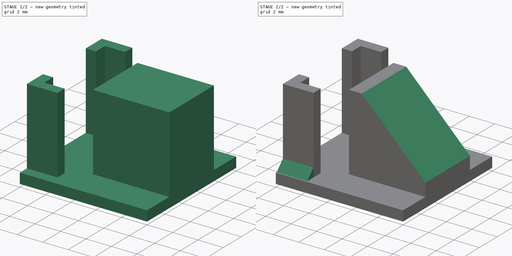
[diagram: build sequence overview — one tinted view per stage of 2, left to right]
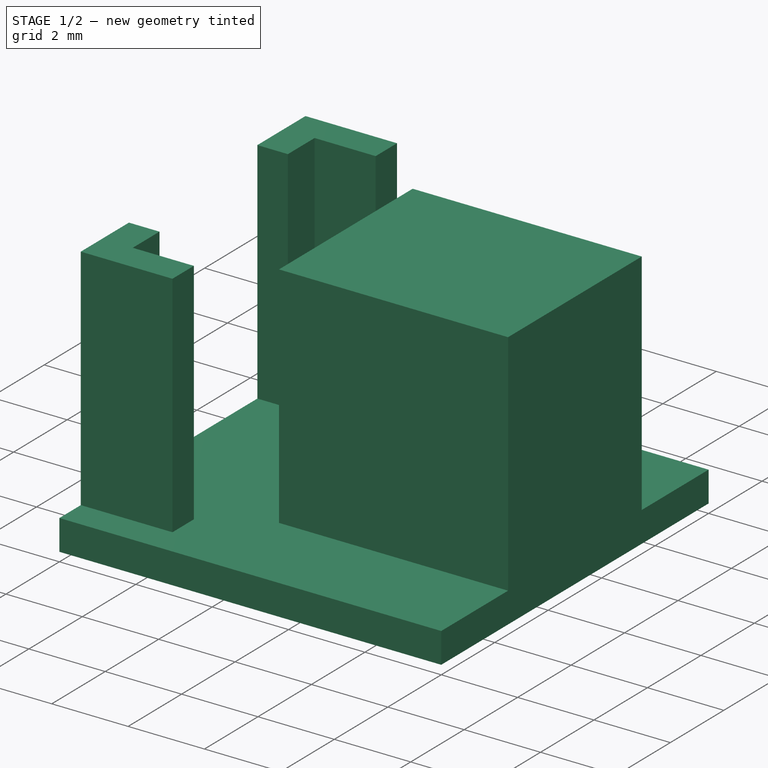
[diagram: stage 1 of 2 — iso view after this stage's code; geometry added in this stage tinted green]
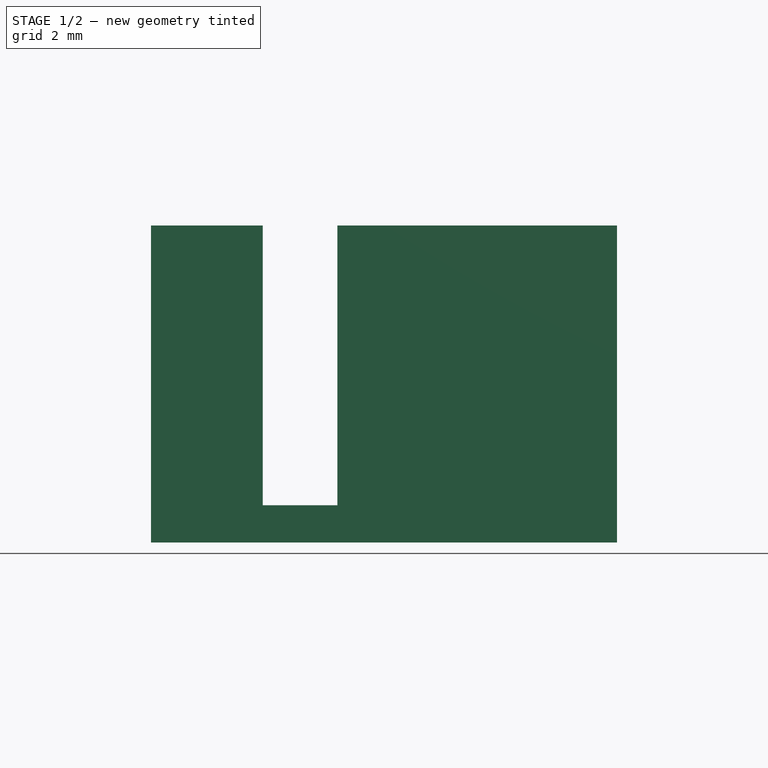
[diagram: stage 1 of 2 — front view after this stage's code; geometry added in this stage tinted green]
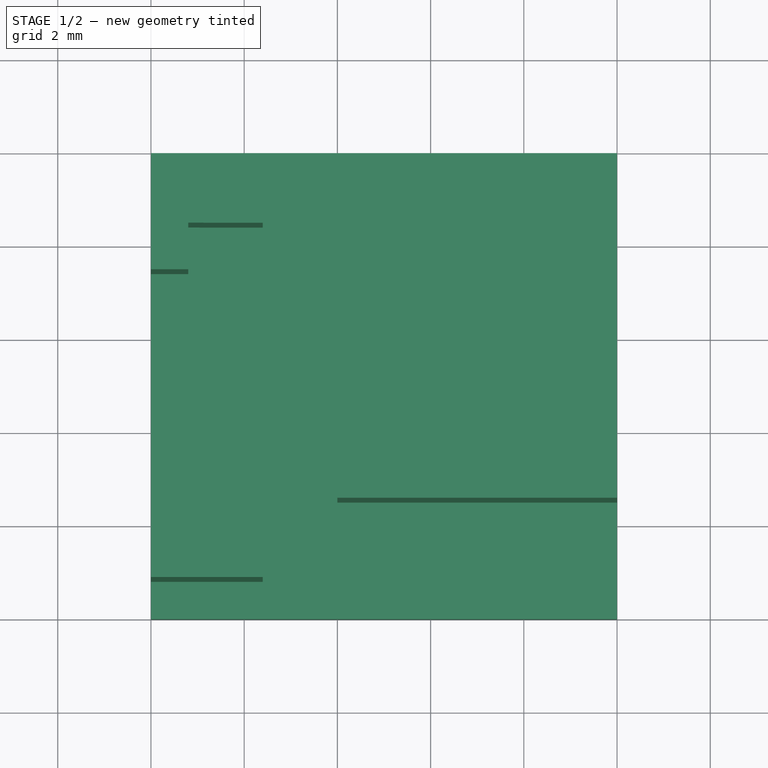
[diagram: stage 1 of 2 — top view after this stage's code; geometry added in this stage tinted green]
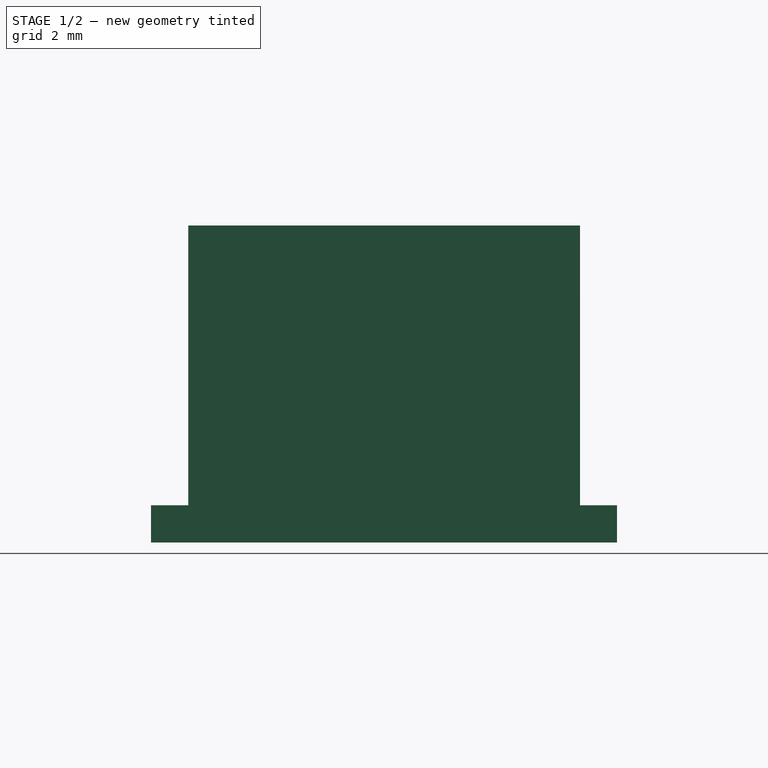
[diagram: stage 1 of 2 — right view after this stage's code; geometry added in this stage tinted green]
FCSTD DOCUMENT  (FreeCAD 0.20R)
Label: btn_holder
License: All rights reserved
LicenseURL: http://en.wikipedia.org/wiki/All_rights_reserved
objects: Sketcher::SketchObject×2, PartDesign::Pad×2, PartDesign::Chamfer×2, PartDesign::Body×1
note: 11 computed .brp shape members not serialized (recipe doc carries the construction recipe); baked Part::Feature solids carry a one-line shape summary decoded from their .brp

FEATURE [Sketcher::SketchObject] Sketch
  FullyConstrained = true
  MapMode = 5
  Support = -> [XY_Plane]
  sketch-geometry (4):
    g0: LineSegment StartX=0 StartY=0 StartZ=0 EndX=10 EndY=0 EndZ=0
    g1: LineSegment StartX=10 StartY=0 StartZ=0 EndX=10 EndY=10 EndZ=0
    g2: LineSegment StartX=10 StartY=10 StartZ=0 EndX=0 EndY=10 EndZ=0
    g3: LineSegment StartX=0 StartY=10 StartZ=0 EndX=0 EndY=0 EndZ=0
  constraints (11):
    c: Coincident(g0,g1)
    c: Coincident(g1,g2)
    c: Coincident(g2,g3)
    c: Coincident(g3,g0)
    c: Horizontal(g0)
    c: Horizontal(g2)
    c: Vertical(g1)
    c: Vertical(g3)
    c: Coincident(g0,g-1)
    c: Distance(g2) = 10
    c: Distance(g1) = 10
FEATURE [PartDesign::Pad] Pad
  Direction = (0,0,1)
  Length = 0.8
  Length2 = 10
  Profile = -> Sketch
  ReferenceAxis = -> Sketch [N_Axis]
  Type = 0
FEATURE [Sketcher::SketchObject] Sketch001
  FullyConstrained = false
  MapMode = 5
  Placement = pos=(0,0,0.8) rot=(0,0,1;0rad)
  Support = -> [Pad]
  sketch-geometry (16):
    g0: LineSegment StartX=4 StartY=7.5 StartZ=0 EndX=10 EndY=7.5 EndZ=0
    g1: LineSegment StartX=10 StartY=7.5 StartZ=0 EndX=10 EndY=2.5 EndZ=0
    g2: LineSegment StartX=10 StartY=2.5 StartZ=0 EndX=4 EndY=2.5 EndZ=0
    g3: LineSegment StartX=4 StartY=2.5 StartZ=0 EndX=4 EndY=7.5 EndZ=0
    g4: LineSegment StartX=0 StartY=0.8 StartZ=0 EndX=0 EndY=2.6 EndZ=0
    g5: LineSegment StartX=0 StartY=2.6 StartZ=0 EndX=0.8 EndY=2.6 EndZ=0
    g6: LineSegment StartX=0 StartY=0.8 StartZ=0 EndX=2.4 EndY=0.8 EndZ=0
    g7: LineSegment StartX=2.4 StartY=0.8 StartZ=0 EndX=2.4 EndY=1.6 EndZ=0
    g8: LineSegment StartX=2.4 StartY=1.6 StartZ=0 EndX=0.8 EndY=1.6 EndZ=0
    g9: LineSegment StartX=0.8 StartY=1.6 StartZ=0 EndX=0.8 EndY=2.6 EndZ=0
    g10: LineSegment StartX=0 StartY=7.4037 StartZ=0 EndX=0 EndY=9.2037 EndZ=0
    g11: LineSegment StartX=0 StartY=7.4037 StartZ=0 EndX=0.8 EndY=7.40246 EndZ=0
    g12: LineSegment StartX=0.8 StartY=7.40246 StartZ=0 EndX=0.8 EndY=8.40246 EndZ=0
    g13: LineSegment StartX=0.8 StartY=8.40246 StartZ=0 EndX=2.4 EndY=8.4 EndZ=0
    g14: LineSegment StartX=2.4 StartY=8.4 StartZ=0 EndX=2.4 EndY=9.2 EndZ=0
    g15: LineSegment StartX=2.4 StartY=9.2 StartZ=0 EndX=0 EndY=9.2037 EndZ=0
  constraints (45):
    c: Coincident(g0,g1)
    c: Coincident(g1,g2)
    c: Coincident(g2,g3)
    c: Coincident(g3,g0)
    c: Horizontal(g0)
    c: Horizontal(g2)
    c: Vertical(g1)
    c: Vertical(g3)
    c: Distance(g3) = 5
    c: DistanceX(g-2,g0) = 10
    c: DistanceY(g-1,g1) = 2.5
    c: Distance(g0) = 6
    c: PointOnObject(g4,g-2)
    c: PointOnObject(g4,g-2)
    c: Coincident(g5,g4)
    c: Horizontal(g5)
    c: Coincident(g6,g4)
    c: Horizontal(g6)
    c: Coincident(g7,g6)
    c: Coincident(g8,g7)
    c: Horizontal(g8)
    c: Coincident(g9,g8)
    c: Coincident(g9,g5)
    c: Distance(g9) = 1
    c: Distance(g6) = 2.4
    c: DistanceX(g-2,g8) = 0.8
    c: Distance(g7) = 0.8
    c: DistanceY(g-1,g7) = 1.6
    c: Vertical(g10)
    c: Coincident(g11,g10)
    c: Coincident(g12,g11)
    c: Coincident(g13,g12)
    c: Coincident(g14,g13)
    c: Coincident(g15,g14)
    c: Coincident(g15,g10)
    c: PointOnObject(g10,g-2)
    c: Distance(g15) = 2.4
    c: Distance(g14) = 0.8
    c: Distance(g12) = 1
    c: Parallel(g10,g14)
    c: Parallel(g14,g12)
    c: DistanceY(g-1,g13) = 8.4
    c: Parallel(g11,g13)
    c: Parallel(g13,g15)
    c: DistanceX(g-2,g11) = 0.8
FEATURE [PartDesign::Pad] Pad001
  BaseFeature = -> Pad
  Direction = (0,0,1)
  Length = 6
  Length2 = 10
  Profile = -> Sketch001
  ReferenceAxis = -> Sketch001 [N_Axis]
  Type = 0
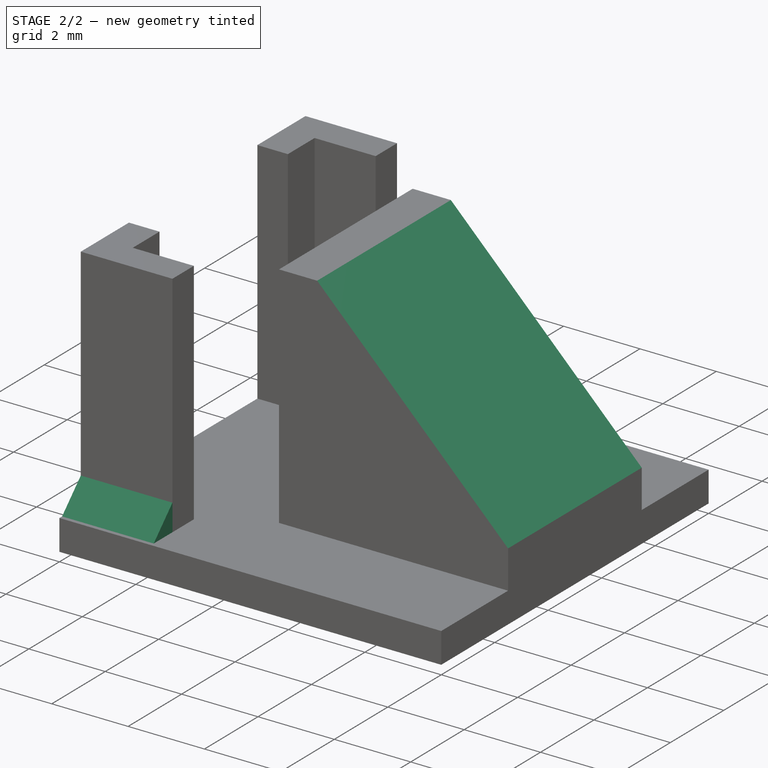
[diagram: stage 2 of 2 — iso view after this stage's code; geometry added in this stage tinted green]
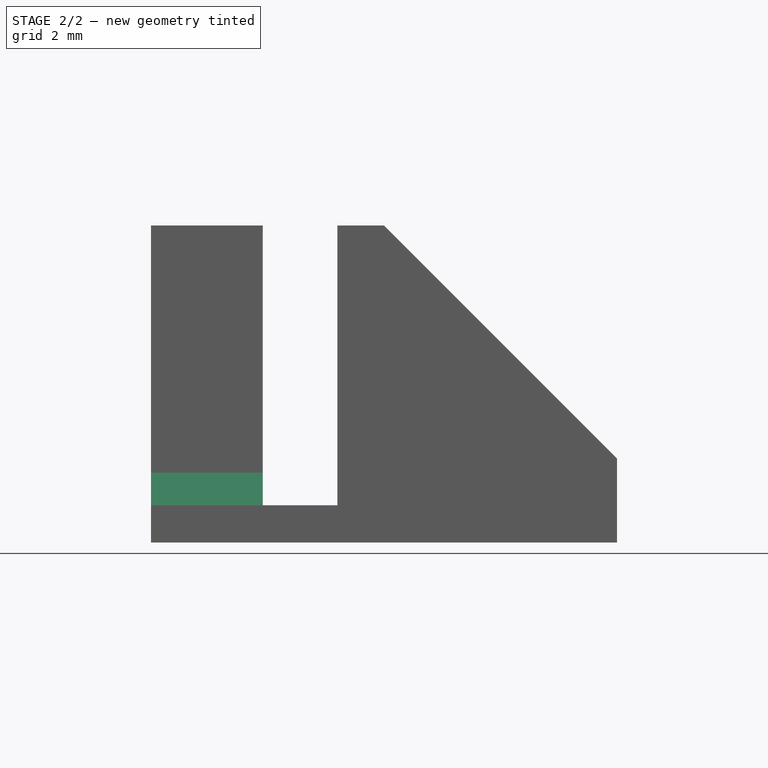
[diagram: stage 2 of 2 — front view after this stage's code; geometry added in this stage tinted green]
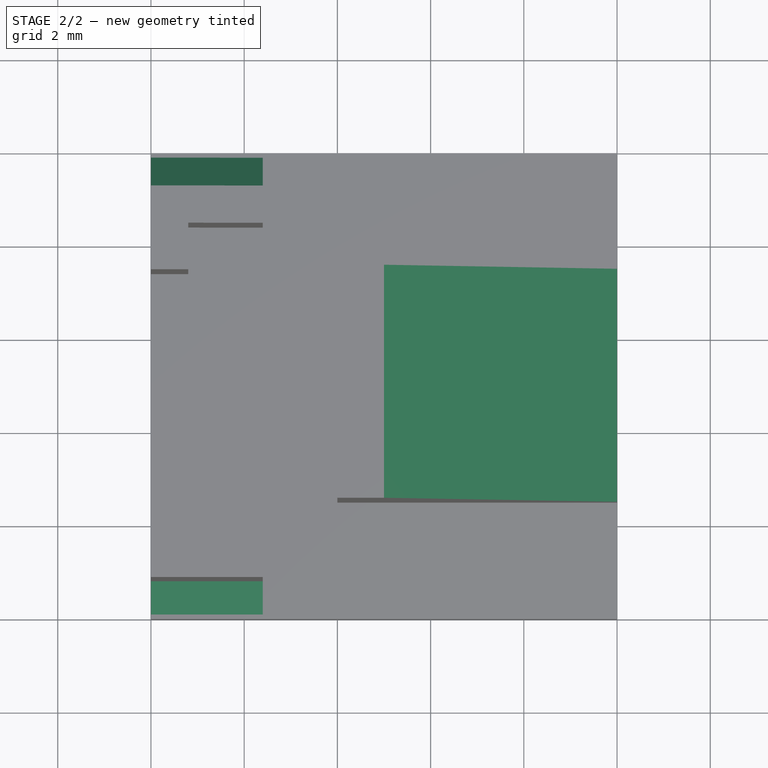
[diagram: stage 2 of 2 — top view after this stage's code; geometry added in this stage tinted green]
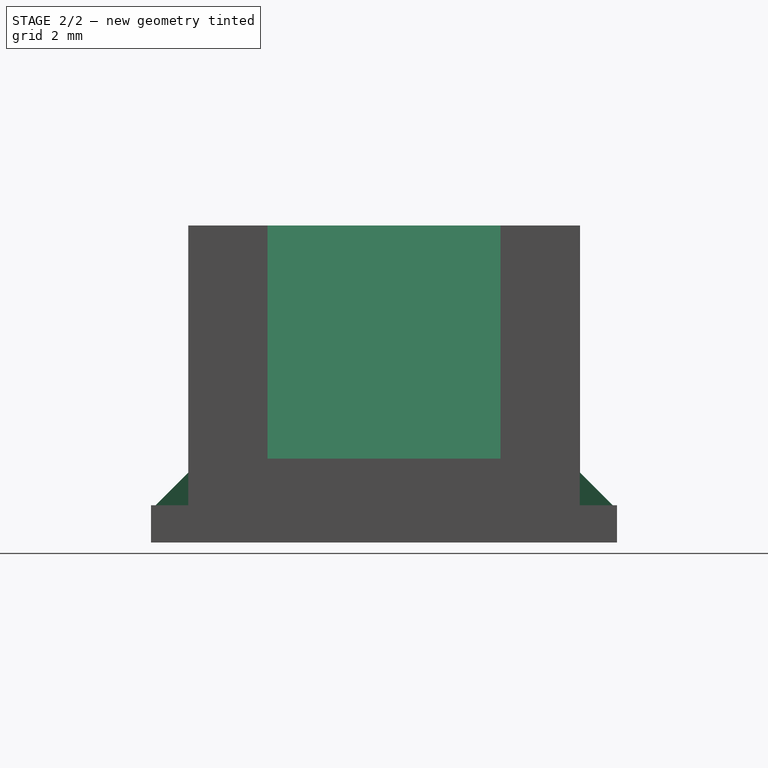
[diagram: stage 2 of 2 — right view after this stage's code; geometry added in this stage tinted green]
FEATURE [PartDesign::Chamfer] Chamfer
  Angle = 45
  Base = -> Pad001 [Edge40]
  BaseFeature = -> Pad001
  ChamferType = 0
  FlipDirection = false
  Size = 5
  Size2 = 1
  SupportTransform = false
  UseAllEdges = false
FEATURE [PartDesign::Chamfer] Chamfer001
  Angle = 45
  Base = -> Chamfer [Edge20,Edge30]
  BaseFeature = -> Chamfer
  ChamferType = 0
  FlipDirection = false
  Size = 0.7
  Size2 = 1
  SupportTransform = false
  UseAllEdges = false
FEATURE [PartDesign::Body] Body
  Group = -> [Sketch,Pad,Sketch001,Pad001,Chamfer,Chamfer001]
  Origin = -> Origin
  Tip = -> Chamfer001
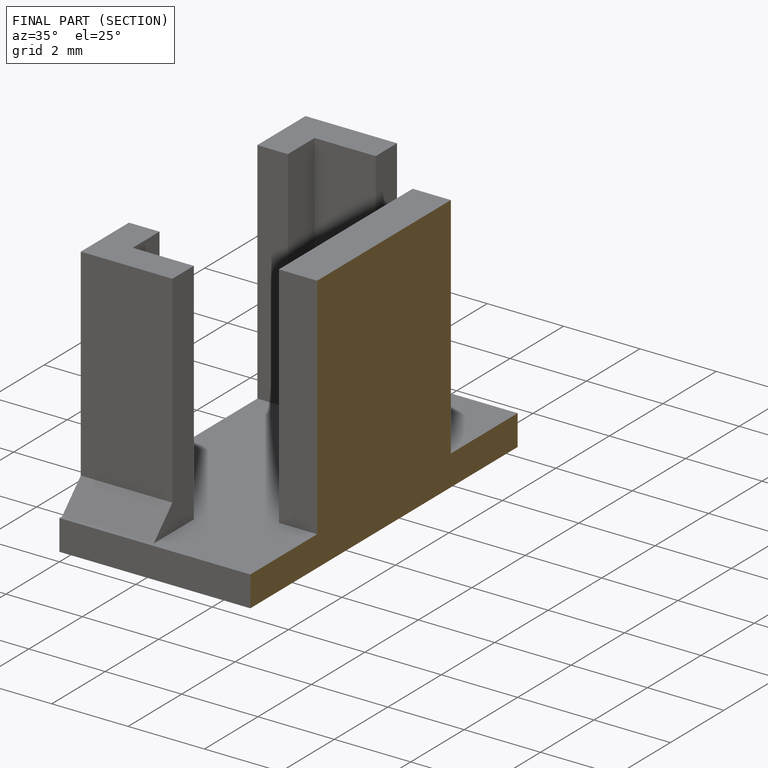
[diagram: finished part — half-section view (interior)]
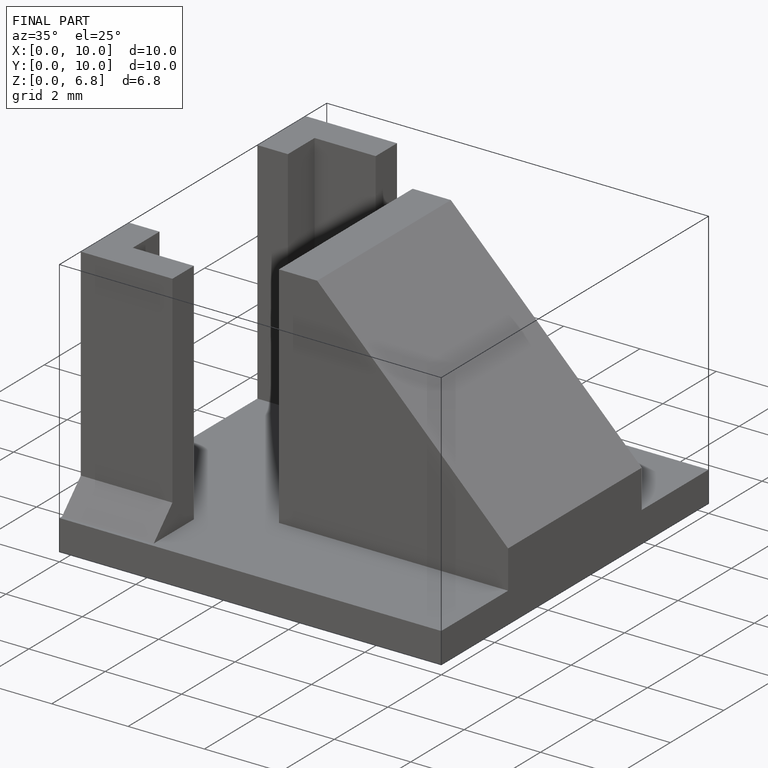
[diagram: finished part — iso view with bounding-box wireframe]
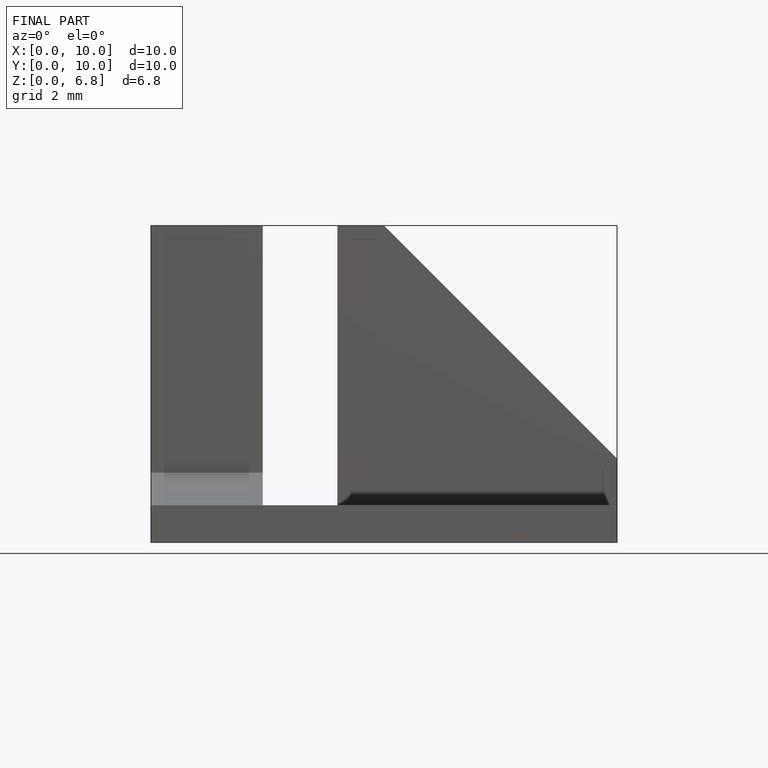
[diagram: finished part — front view with bounding-box wireframe]
